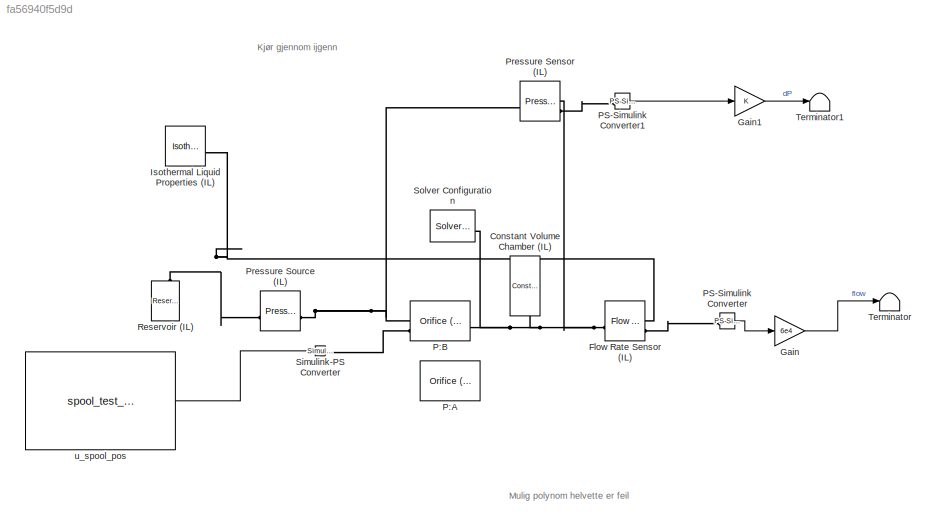
MODEL slx_fa56940f5d9d
KIND model
CONFIG AbsTol = auto
CONFIG EnableMultiTasking = off
CONFIG FixedStep = auto
CONFIG MaxStep = auto
CONFIG MinStep = auto
CONFIG RelTol = 1e-3
CONFIG SampleTimeConstraint = Unconstrained
CONFIG SolverName = VariableStepAuto
CONFIG StartTime = 0.0
CONFIG StopTime = 10.0
WORKSPACE source: MATLAB code (in-file)
WORKSPACE code: clear;
WORKSPACE rho = 875
WORKSPACE beta = 1000
WORKSPACE pP = 10e6  (= 10000000)
WORKSPACE dp0 = 20e5  (= 2000000)
WORKSPACE Q0 = 18/6e4  (= 0.0003)
WORKSPACE Cd = 0.55
WORKSPACE AdMax_SI = Q0/(Cd*(2/rho*dp0)^0.5)  (= 8.06738152241e-06)
WORKSPACE AdMax = AdMax_SI*1e6  (= 8.06738152241)
WORKSPACE u_dead_up = 0.236
WORKSPACE u_dead_down = 0.206
WORKSPACE spool_dead_up = 1.1182 * u_dead_up   - 0.0325  (= 0.2313952)
WORKSPACE spool_dead_down = 1.1075 * u_dead_down - 0.0416  (= 0.186545)
WORKSPACE p_spool_of_Kv_up = [0.0018653, -0.033672,  0.22033, -0.65618,  0.83411, -0.047269, 0.26252]
WORKSPACE p_spool_of_Kv_down = [0.00098272, -0.017507,  0.11599, -0.34851,  0.41222,  0.17643,  0.2076]
WORKSPACE slope_Kv_up = 0.270407
WORKSPACE slope_Kv_down = 0.230397
WORKSPACE Kv_range = linspace(0.09, 4, 10000)
WORKSPACE spool_up = polyval(p_spool_of_Kv_up,   Kv_range)
WORKSPACE spool_down = polyval(p_spool_of_Kv_down, Kv_range)
WORKSPACE u_breakpoints = [0.25, 0.30:0.025:1.0]
WORKSPACE spool_bp_up = 1.1182 * u_breakpoints - 0.0325
WORKSPACE spool_bp_down = 1.1075 * u_breakpoints - 0.0416
WORKSPACE Kv_bp_up = zeros(1, length(u_breakpoints))
WORKSPACE Kv_bp_down = zeros(1, length(u_breakpoints))
WORKSPACE code: for i = 1:length(u_breakpoints)
WORKSPACE code: if u_breakpoints(i) <= 0.25
WORKSPACE code: Kv_bp_up(i)   = (spool_bp_up(i)   - spool_dead_up)   / slope_Kv_up;
WORKSPACE code: Kv_bp_down(i) = (spool_bp_down(i) - spool_dead_down) / slope_Kv_down;
WORKSPACE code: else
WORKSPACE code: [~, idx_up]   = min(abs(spool_up   - spool_bp_up(i)));
WORKSPACE code: [~, idx_down] = min(abs(spool_down - spool_bp_down(i)));
WORKSPACE code: Kv_bp_up(i)   = Kv_range(idx_up);
WORKSPACE code: Kv_bp_down(i) = Kv_range(idx_down);
WORKSPACE code: end
WORKSPACE code: end
WORKSPACE code: [~, idx_max_up]   = max(spool_up);
WORKSPACE code: [~, idx_max_down] = max(spool_down);
WORKSPACE Kv_max_up = Kv_range(idx_max_up)
WORKSPACE Kv_max_down = Kv_range(idx_max_down)
WORKSPACE Kv_unit_conv = sqrt(1e-5) / 6e4
WORKSPACE A_bp_up = (Kv_bp_up   * Kv_unit_conv) / (Cd * sqrt(2/rho))
WORKSPACE A_bp_down = (Kv_bp_down * Kv_unit_conv) / (Cd * sqrt(2/rho))
WORKSPACE A_max_up = (Kv_max_up  * Kv_unit_conv) / (Cd * sqrt(2/rho))
WORKSPACE A_max_down = (Kv_max_down* Kv_unit_conv) / (Cd * sqrt(2/rho))
WORKSPACE orifice_area_up = [1e-9, A_bp_up,   A_max_up]
WORKSPACE orifice_area_down = [1e-9, A_bp_down, A_max_down]
WORKSPACE u_max_pos = 1.05
WORKSPACE control_pos_up = [0, spool_bp_up,   1.1182 * u_max_pos - 0.0325]
WORKSPACE control_pos_down = [0, spool_bp_down, 1.1075 * u_max_pos - 0.0416]
WORKSPACE alpha = 5
WORKSPACE pCr_A = 245
WORKSPACE dp_open_A = 245
WORKSPACE Cd_CBV = 0.8
WORKSPACE AdMax_CBV = (60 / 6e4) / sqrt(2/rho * 16e5) / Cd_CBV
WORKSPACE u_test = 0.8
WORKSPACE spool_test_up = 1.1182 * u_test - 0.0325  (= 0.86206)
WORKSPACE spool_test_down = 1.1075 * u_test - 0.0416  (= 0.8444)
WORKSPACE code: [~, idx_up]   = min(abs(spool_up   - spool_test_up));
WORKSPACE code: [~, idx_down] = min(abs(spool_down - spool_test_down));
WORKSPACE Kv_expected_up = Kv_range(idx_up)
WORKSPACE Kv_expected_down = Kv_range(idx_down)
BLOCK [Reference] Constant Volume Chamber (IL)  REF=fl_lib/Isothermal Liquid/Elements/Constant Volume
Chamber (IL)
  NameLocation = left
  SourceBlock = fl_lib/Isothermal Liquid/Elements/Constant Volume\nChamber (IL)
  SourceType = Constant Volume\nChamber (IL)
BLOCK [Reference] Flow Rate Sensor (IL)  REF=fl_lib/Isothermal Liquid/Sensors/Flow Rate Sensor
(IL)
  SourceBlock = fl_lib/Isothermal Liquid/Sensors/Flow Rate Sensor\n(IL)
  SourceType = Flow Rate Sensor\n(IL)
BLOCK [Gain] Gain
  Gain = 6e4
BLOCK [Gain] Gain1
BLOCK [Reference] Isothermal Liquid Properties (IL)  REF=fl_lib/Isothermal Liquid/Utilities/Isothermal Liquid
Properties (IL)
  SourceBlock = fl_lib/Isothermal Liquid/Utilities/Isothermal Liquid\nProperties (IL)
  SourceType = Isothermal Liquid\nProperties (IL)
BLOCK [Reference] P:A  REF=SimscapeFluids_lib/Isothermal Liquid/Valves & Orifices/Orifices/Orifice (IL)
  SourceBlock = SimscapeFluids_lib/Isothermal Liquid/Valves & Orifices/Orifices/Orifice (IL)
  SourceType = Orifice (IL)
BLOCK [Reference] P:B  REF=SimscapeFluids_lib/Isothermal Liquid/Valves & Orifices/Orifices/Orifice (IL)
  SourceBlock = SimscapeFluids_lib/Isothermal Liquid/Valves & Orifices/Orifices/Orifice (IL)
  SourceType = Orifice (IL)
BLOCK [Reference] PS-Simulink Converter  REF=nesl_utility/PS-Simulink
Converter
  SourceBlock = nesl_utility/PS-Simulink\nConverter
  SourceType = PS-Simulink\nConverter
BLOCK [Reference] PS-Simulink Converter1  REF=nesl_utility/PS-Simulink
Converter
  SourceBlock = nesl_utility/PS-Simulink\nConverter
  SourceType = PS-Simulink\nConverter
BLOCK [Reference] Pressure Sensor (IL)  REF=fl_lib/Isothermal Liquid/Sensors/Pressure Sensor (IL)
  SourceBlock = fl_lib/Isothermal Liquid/Sensors/Pressure Sensor (IL)
  SourceType = Pressure Sensor (IL)
BLOCK [Reference] Pressure Source (IL)  REF=fl_lib/Isothermal Liquid/Sources/Pressure Source (IL)
  SourceBlock = fl_lib/Isothermal Liquid/Sources/Pressure Source (IL)
  SourceType = Pressure Source (IL)
BLOCK [Reference] Reservoir (IL)  REF=fl_lib/Isothermal Liquid/Elements/Reservoir (IL)
  NameLocation = right
  SourceBlock = fl_lib/Isothermal Liquid/Elements/Reservoir (IL)
  SourceType = Reservoir (IL)
BLOCK [Reference] Simulink-PS Converter  REF=nesl_utility/Simulink-PS
Converter
  SourceBlock = nesl_utility/Simulink-PS\nConverter
  SourceType = Simulink-PS\nConverter
BLOCK [Reference] Solver Configuration  REF=nesl_utility/Solver
Configuration
  SourceBlock = nesl_utility/Solver\nConfiguration
  SourceType = Solver\nConfiguration
BLOCK [Terminator] Terminator
BLOCK [Terminator] Terminator1
BLOCK [Constant] u_spool_pos
  Value = spool_test_down
ANNOTATION (root): Kjør gjennom ijgenn
ANNOTATION (root): Mulig polynom helvette er feil
LINE Gain1:1 -> Terminator1:1
LINE Gain:1 -> Terminator:1
LINE PS-Simulink Converter1:1 -> Gain1:1
LINE PS-Simulink Converter:1 -> Gain:1
LINE u_spool_pos:1 -> Simulink-PS Converter:1
PNET net1: Constant Volume Chamber (IL):LConn1 -- Flow Rate Sensor (IL):LConn1 -- P:B:RConn1 -- Pressure Sensor (IL):RConn1 -- Solver Configuration:RConn1
PNET net2: Flow Rate Sensor (IL):RConn1 -- Isothermal Liquid Properties (IL):RConn1 -- Pressure Source (IL):LConn1 -- Reservoir (IL):LConn1
PLINE Flow Rate Sensor (IL):RConn2 -- PS-Simulink Converter:LConn1
PNET net3: P:B:LConn1 -- Pressure Sensor (IL):LConn1 -- Pressure Source (IL):RConn1
PLINE P:B:LConn2 -- Simulink-PS Converter:RConn1
PLINE PS-Simulink Converter1:LConn1 -- Pressure Sensor (IL):RConn2
note: PNET lines group multi-terminal physical nets as a canonical sorted terminal list (undirected conserving connections); 2-terminal nets keep the pairwise PLINE form
